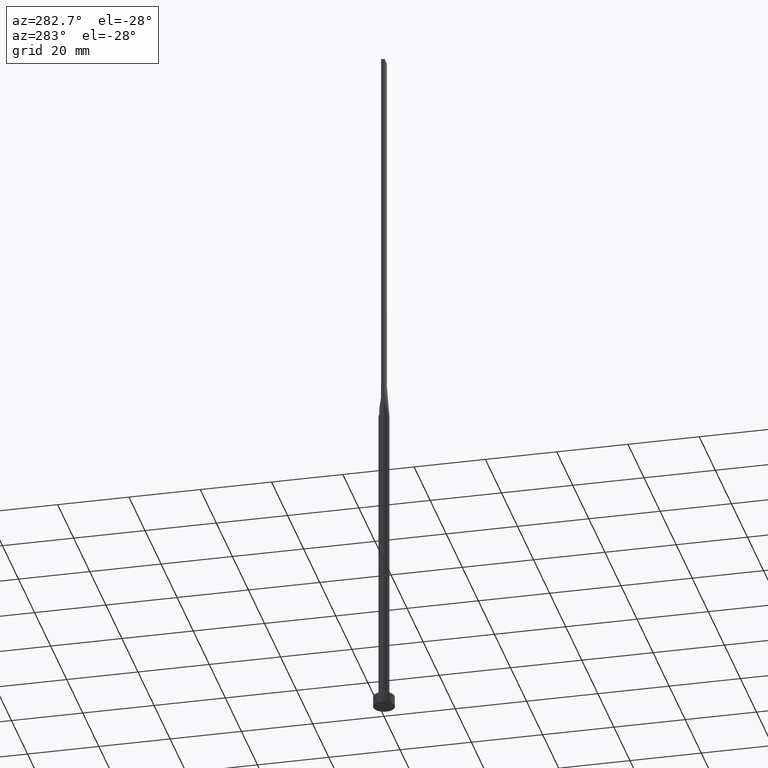
[diagram: clean part render]
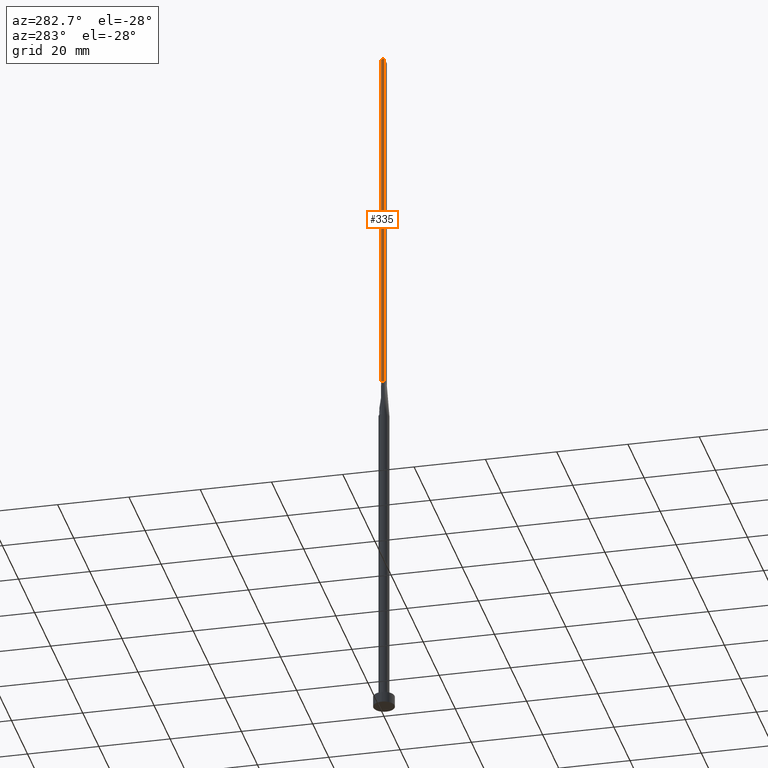
[diagram: same view with one face highlighted and labeled with its STEP entity id]
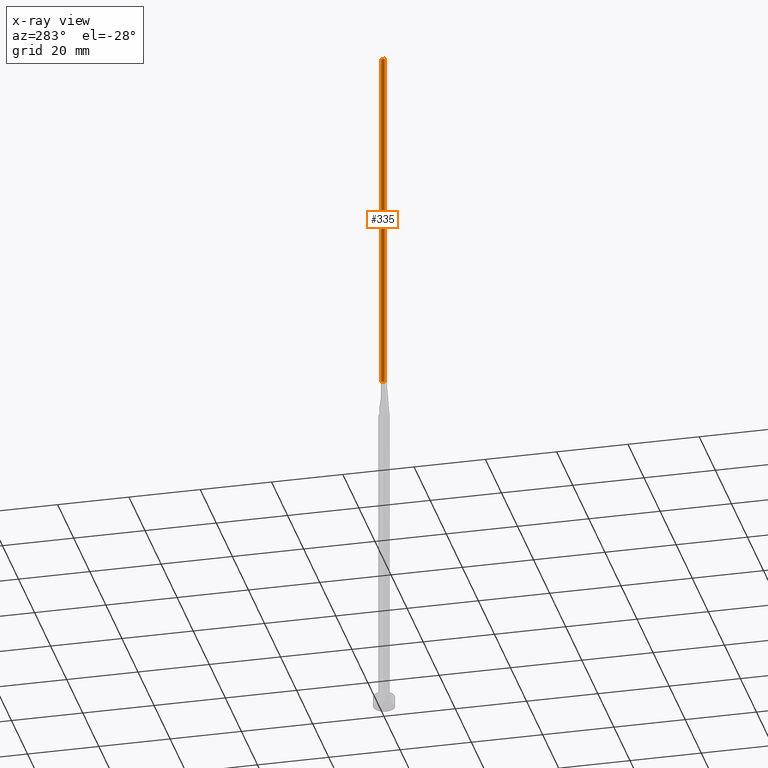
[diagram: x-ray of the same camera — body ghosted, the highlighted face saturated]
A machine part, auxiliary view. The second image highlights one B-rep face of the part: STEP entity #335.
The next image is the same camera in x-ray: the body ghosted, the highlighted face saturated — about 0% of this face is hidden behind the body in this view.
In plain terms, the highlighted planar face has unit normal (1, -0, 0).
Its self-contained STEP definition (entity closure, byte-faithful):
#11 = VECTOR ( 'NONE', #76, 1000.000000000000000 ) ;
#13 = CARTESIAN_POINT ( 'NONE',  ( -1.399999999999999911, -0.4999999999999995559, 200.0000000000000000 ) ) ;
#20 = EDGE_CURVE ( 'NONE', #532, #265, #213, .T. ) ;
#32 = DIRECTION ( 'NONE',  ( 2.168404344971009361E-16, 1.000000000000000000, 0.000000000000000000 ) ) ;
#76 = DIRECTION ( 'NONE',  ( -0.000000000000000000, -0.000000000000000000, -1.000000000000000000 ) ) ;
#82 = PLANE ( 'NONE',  #308 ) ;
#87 = VERTEX_POINT ( 'NONE', #96 ) ;
#96 = CARTESIAN_POINT ( 'NONE',  ( -1.399999999999999911, -0.4999999999999995559, 200.0000000000000000 ) ) ;
#109 = EDGE_CURVE ( 'NONE', #87, #449, #555, .T. ) ;
#124 = FACE_OUTER_BOUND ( 'NONE', #534, .T. ) ;
#125 = ORIENTED_EDGE ( 'NONE', *, *, #109, .F. ) ;
#133 = ORIENTED_EDGE ( 'NONE', *, *, #218, .F. ) ;
#141 = DIRECTION ( 'NONE',  ( -2.168404344971009361E-16, -1.000000000000000000, 0.000000000000000000 ) ) ;
#146 = CARTESIAN_POINT ( 'NONE',  ( -1.399999999999999689, 0.5000000000000002220, 200.0000000000000000 ) ) ;
#213 = LINE ( 'NONE', #395, #11 ) ;
#218 = EDGE_CURVE ( 'NONE', #532, #87, #366, .T. ) ;
#255 = DIRECTION ( 'NONE',  ( 1.000000000000000000, -2.168404344971009361E-16, 0.000000000000000000 ) ) ;
#257 = VECTOR ( 'NONE', #321, 1000.000000000000000 ) ;
#265 = VERTEX_POINT ( 'NONE', #468 ) ;
#308 = AXIS2_PLACEMENT_3D ( 'NONE', #567, #255, #32 ) ;
#321 = DIRECTION ( 'NONE',  ( -0.000000000000000000, -0.000000000000000000, -1.000000000000000000 ) ) ;
#335 = ADVANCED_FACE ( 'NONE', ( #124 ), #82, .F. ) ;
#354 = ORIENTED_EDGE ( 'NONE', *, *, #521, .T. ) ;
#366 = LINE ( 'NONE', #544, #400 ) ;
#370 = LINE ( 'NONE', #551, #394 ) ;
#372 = CARTESIAN_POINT ( 'NONE',  ( -1.399999999999999911, -0.4999999999999995559, 99.99999999999998579 ) ) ;
#394 = VECTOR ( 'NONE', #503, 1000.000000000000000 ) ;
#395 = CARTESIAN_POINT ( 'NONE',  ( -1.399999999999999689, 0.5000000000000002220, 200.0000000000000000 ) ) ;
#400 = VECTOR ( 'NONE', #141, 1000.000000000000000 ) ;
#449 = VERTEX_POINT ( 'NONE', #372 ) ;
#468 = CARTESIAN_POINT ( 'NONE',  ( -1.399999999999999689, 0.5000000000000002220, 99.99999999999998579 ) ) ;
#503 = DIRECTION ( 'NONE',  ( -2.168404344971009361E-16, -1.000000000000000000, 0.000000000000000000 ) ) ;
#521 = EDGE_CURVE ( 'NONE', #265, #449, #370, .T. ) ;
#532 = VERTEX_POINT ( 'NONE', #146 ) ;
#534 = EDGE_LOOP ( 'NONE', ( #354, #125, #133, #536 ) ) ;
#536 = ORIENTED_EDGE ( 'NONE', *, *, #20, .T. ) ;
#544 = CARTESIAN_POINT ( 'NONE',  ( -1.399999999999999689, 0.5000000000000002220, 200.0000000000000000 ) ) ;
#551 = CARTESIAN_POINT ( 'NONE',  ( -1.399999999999999689, 0.5000000000000002220, 99.99999999999998579 ) ) ;
#555 = LINE ( 'NONE', #13, #257 ) ;
#567 = CARTESIAN_POINT ( 'NONE',  ( -1.399999999999999689, 0.5000000000000002220, 200.0000000000000000 ) ) ;